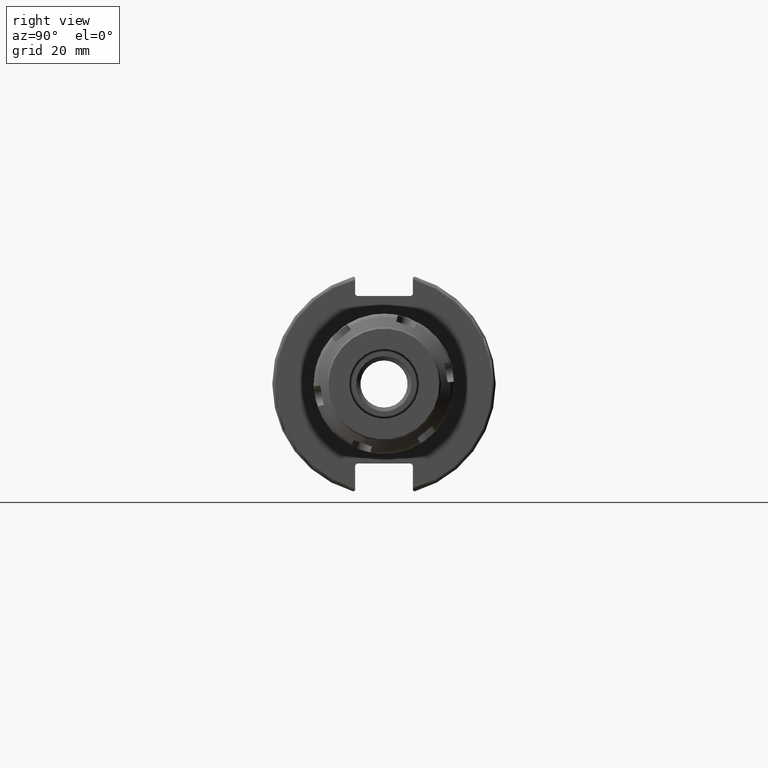
[diagram: clean part render]
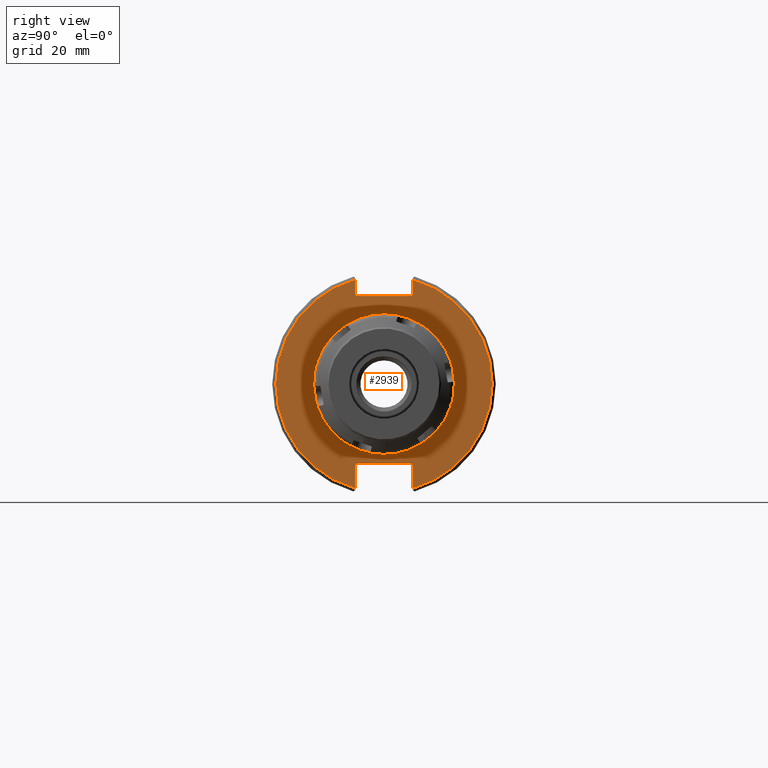
[diagram: same view with one face highlighted and labeled with its STEP entity id]
A machine part, right view. The second image highlights one B-rep face of the part: STEP entity #2939.
In plain terms, the highlighted planar face has unit normal (1, 0, 0).
Its self-contained STEP definition (entity closure, byte-faithful):
#325=PLANE('',#3260);
#381=FACE_BOUND('',#695,.T.);
#528=FACE_OUTER_BOUND('',#694,.T.);
#694=EDGE_LOOP('',(#2260,#2261,#2262,#2263,#2264,#2265,#2266,#2267,#2268,
#2269,#2270,#2271));
#695=EDGE_LOOP('',(#2272));
#864=LINE('',#4891,#1054);
#870=LINE('',#4913,#1060);
#871=LINE('',#4915,#1061);
#872=LINE('',#4917,#1062);
#873=LINE('',#4919,#1063);
#874=LINE('',#4921,#1064);
#875=LINE('',#4925,#1065);
#876=LINE('',#4927,#1066);
#877=LINE('',#4929,#1067);
#878=LINE('',#4930,#1068);
#1054=VECTOR('',#3766,10.);
#1060=VECTOR('',#3774,10.);
#1061=VECTOR('',#3775,10.);
#1062=VECTOR('',#3776,10.);
#1063=VECTOR('',#3777,10.);
#1064=VECTOR('',#3778,10.);
#1065=VECTOR('',#3781,10.);
#1066=VECTOR('',#3782,10.);
#1067=VECTOR('',#3783,10.);
#1068=VECTOR('',#3784,10.);
#1205=CIRCLE('',#3175,20.);
#1236=CIRCLE('',#3256,30.75);
#1238=CIRCLE('',#3261,30.75);
#1342=VERTEX_POINT('',#4505);
#1423=VERTEX_POINT('',#4851);
#1424=VERTEX_POINT('',#4858);
#1428=VERTEX_POINT('',#4890);
#1434=VERTEX_POINT('',#4912);
#1435=VERTEX_POINT('',#4914);
#1436=VERTEX_POINT('',#4916);
#1437=VERTEX_POINT('',#4918);
#1438=VERTEX_POINT('',#4920);
#1439=VERTEX_POINT('',#4922);
#1440=VERTEX_POINT('',#4924);
#1441=VERTEX_POINT('',#4926);
#1442=VERTEX_POINT('',#4928);
#1624=EDGE_CURVE('',#1342,#1342,#1205,.T.);
#1733=EDGE_CURVE('',#1423,#1424,#1236,.T.);
#1740=EDGE_CURVE('',#1428,#1424,#864,.T.);
#1748=EDGE_CURVE('',#1423,#1434,#870,.T.);
#1749=EDGE_CURVE('',#1435,#1434,#871,.T.);
#1750=EDGE_CURVE('',#1435,#1436,#872,.T.);
#1751=EDGE_CURVE('',#1437,#1436,#873,.T.);
#1752=EDGE_CURVE('',#1437,#1438,#874,.T.);
#1753=EDGE_CURVE('',#1439,#1438,#1238,.T.);
#1754=EDGE_CURVE('',#1439,#1440,#875,.T.);
#1755=EDGE_CURVE('',#1441,#1440,#876,.T.);
#1756=EDGE_CURVE('',#1441,#1442,#877,.T.);
#1757=EDGE_CURVE('',#1428,#1442,#878,.T.);
#2260=ORIENTED_EDGE('',*,*,#1733,.F.);
#2261=ORIENTED_EDGE('',*,*,#1748,.T.);
#2262=ORIENTED_EDGE('',*,*,#1749,.F.);
#2263=ORIENTED_EDGE('',*,*,#1750,.T.);
#2264=ORIENTED_EDGE('',*,*,#1751,.F.);
#2265=ORIENTED_EDGE('',*,*,#1752,.T.);
#2266=ORIENTED_EDGE('',*,*,#1753,.F.);
#2267=ORIENTED_EDGE('',*,*,#1754,.T.);
#2268=ORIENTED_EDGE('',*,*,#1755,.F.);
#2269=ORIENTED_EDGE('',*,*,#1756,.T.);
#2270=ORIENTED_EDGE('',*,*,#1757,.F.);
#2271=ORIENTED_EDGE('',*,*,#1740,.T.);
#2272=ORIENTED_EDGE('',*,*,#1624,.T.);
#2939=ADVANCED_FACE('',(#528,#381),#325,.T.);
#3175=AXIS2_PLACEMENT_3D('',#4507,#3553,#3554);
#3256=AXIS2_PLACEMENT_3D('',#4859,#3756,#3757);
#3260=AXIS2_PLACEMENT_3D('',#4911,#3772,#3773);
#3261=AXIS2_PLACEMENT_3D('',#4923,#3779,#3780);
#3553=DIRECTION('center_axis',(-1.,0.,0.));
#3554=DIRECTION('ref_axis',(0.,1.,0.));
#3756=DIRECTION('center_axis',(-1.,0.,0.));
#3757=DIRECTION('ref_axis',(0.,1.,-6.12323399573677E-17));
#3766=DIRECTION('',(0.,0.,-1.));
#3772=DIRECTION('center_axis',(1.,0.,0.));
#3773=DIRECTION('ref_axis',(0.,0.,-1.));
#3774=DIRECTION('',(0.,0.,-1.));
#3775=DIRECTION('',(0.,0.707106781186549,0.707106781186546));
#3776=DIRECTION('',(0.,-1.,0.));
#3777=DIRECTION('',(0.,0.70710678118655,-0.707106781186545));
#3778=DIRECTION('',(0.,0.,1.));
#3779=DIRECTION('center_axis',(-1.,0.,0.));
#3780=DIRECTION('ref_axis',(0.,-1.,1.60812264967664E-16));
#3781=DIRECTION('',(0.,0.,1.));
#3782=DIRECTION('',(0.,-0.707106781186549,-0.707106781186546));
#3783=DIRECTION('',(0.,1.,0.));
#3784=DIRECTION('',(0.,-0.707106781186549,0.707106781186546));
#4505=CARTESIAN_POINT('',(19.05,-20.,-2.44929359829471E-15));
#4507=CARTESIAN_POINT('Origin',(19.05,0.,0.));
#4851=CARTESIAN_POINT('',(19.05,8.19,29.6392712461019));
#4858=CARTESIAN_POINT('',(19.05,8.19,-29.6392712461019));
#4859=CARTESIAN_POINT('Origin',(19.05,0.,0.));
#4890=CARTESIAN_POINT('',(19.05,8.19,-23.1));
#4891=CARTESIAN_POINT('',(19.05,8.19,-11.3));
#4911=CARTESIAN_POINT('Origin',(19.05,0.,0.));
#4912=CARTESIAN_POINT('',(19.05,8.19,25.5));
#4913=CARTESIAN_POINT('',(19.05,8.19,12.5));
#4914=CARTESIAN_POINT('',(19.05,7.69,25.));
#4915=CARTESIAN_POINT('',(19.05,-0.35750000000001,16.9525));
#4916=CARTESIAN_POINT('',(19.05,-7.69,25.));
#4917=CARTESIAN_POINT('',(19.05,0.,25.));
#4918=CARTESIAN_POINT('',(19.05,-8.19,25.5));
#4919=CARTESIAN_POINT('',(19.05,0.357500000000014,16.9525));
#4920=CARTESIAN_POINT('',(19.05,-8.19,29.6392712461019));
#4921=CARTESIAN_POINT('',(19.05,-8.19,12.5));
#4922=CARTESIAN_POINT('',(19.05,-8.19,-29.6392712461019));
#4923=CARTESIAN_POINT('Origin',(19.05,0.,0.));
#4924=CARTESIAN_POINT('',(19.05,-8.19,-23.1));
#4925=CARTESIAN_POINT('',(19.05,-8.19,-11.3));
#4926=CARTESIAN_POINT('',(19.05,-7.69,-22.6));
#4927=CARTESIAN_POINT('',(19.05,-0.242499999999991,-15.1525));
#4928=CARTESIAN_POINT('',(19.05,7.69,-22.6));
#4929=CARTESIAN_POINT('',(19.05,-2.77555756156289E-16,-22.6));
#4930=CARTESIAN_POINT('',(19.05,0.242499999999989,-15.1525));